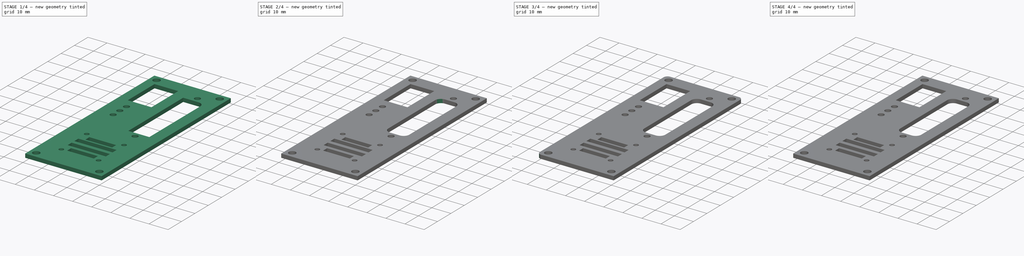
[diagram: build sequence overview — one tinted view per stage of 4, left to right]
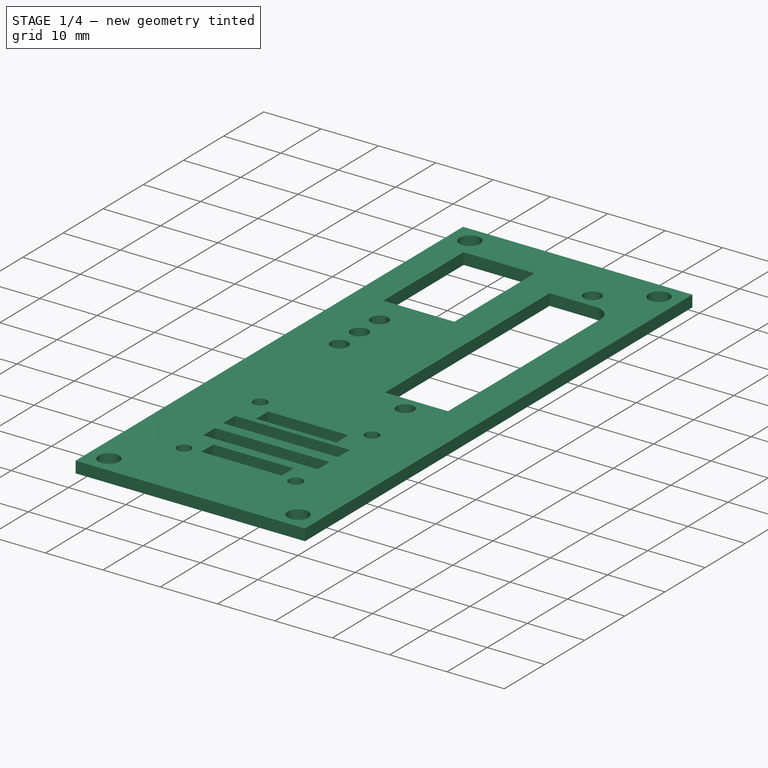
[diagram: stage 1 of 4 — iso view after this stage's code; geometry added in this stage tinted green]
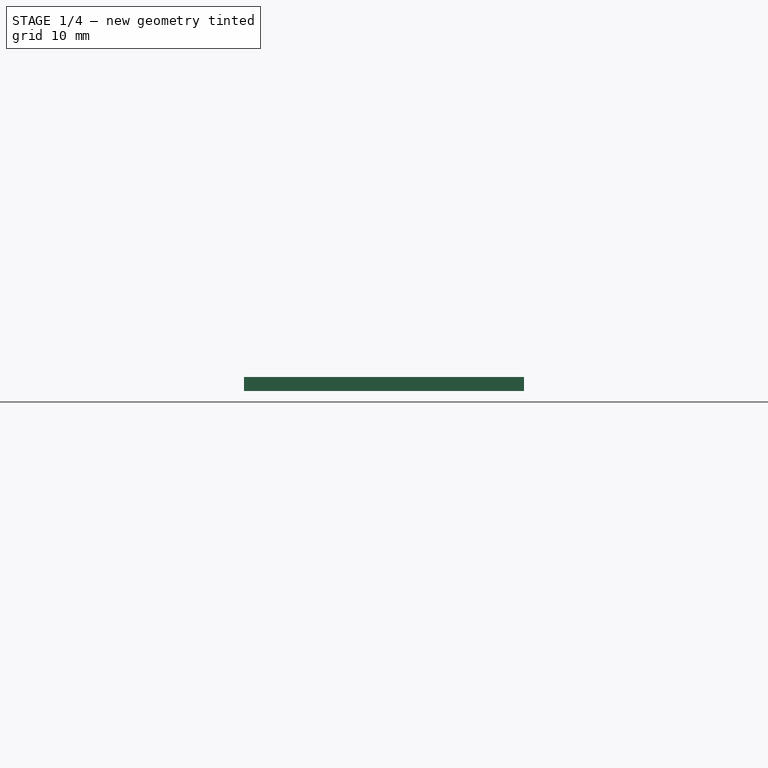
[diagram: stage 1 of 4 — front view after this stage's code; geometry added in this stage tinted green]
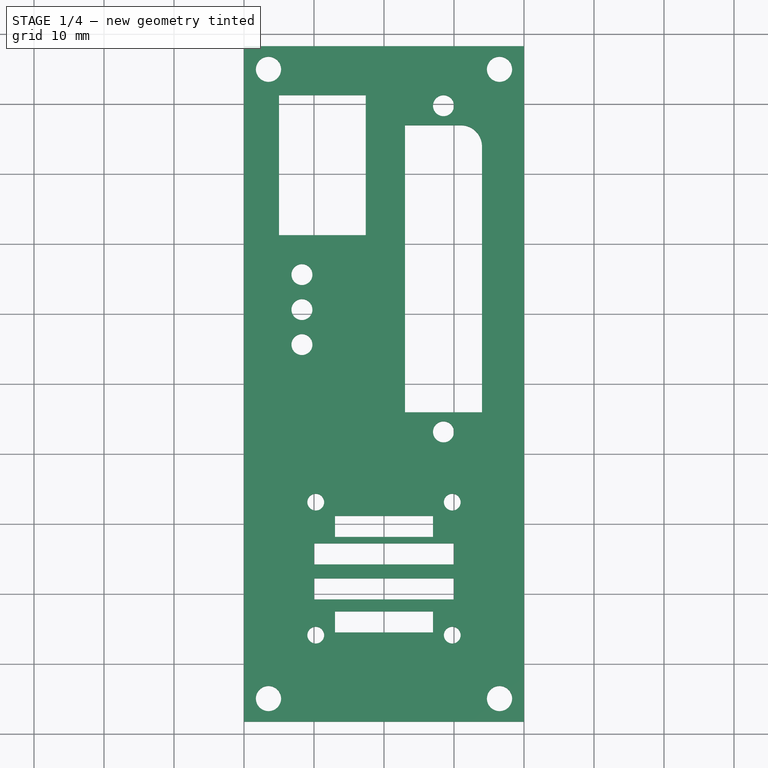
[diagram: stage 1 of 4 — top view after this stage's code; geometry added in this stage tinted green]
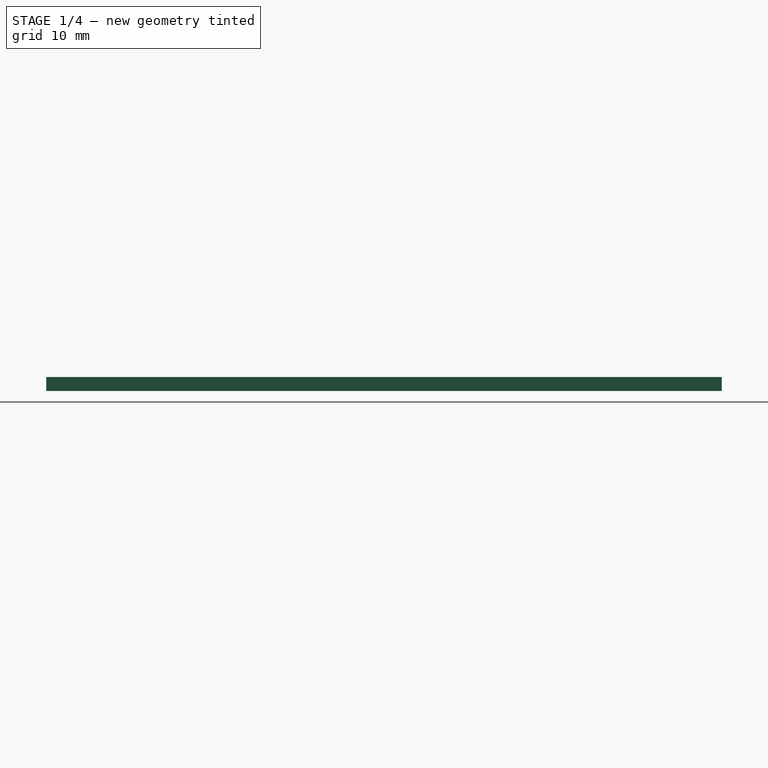
[diagram: stage 1 of 4 — right view after this stage's code; geometry added in this stage tinted green]
FCSTD DOCUMENT  (FreeCAD 0.18.4R)
Label: right_case
License: All rights reserved
LicenseURL: http://en.wikipedia.org/wiki/All_rights_reserved
objects: PartDesign::Fillet×9, Sketcher::SketchObject×3, PartDesign::Pad×1, PartDesign::Pocket×1, PartDesign::Hole×1, PartDesign::Body×1
note: 19 computed .brp shape members not serialized (recipe doc carries the construction recipe); baked Part::Feature solids carry a one-line shape summary decoded from their .brp

FEATURE [Sketcher::SketchObject] Sketch
  MapMode = 5
  Support = -> [XY_Plane]
  sketch-geometry (4):
    g0: LineSegment StartX=-20 StartY=48.25 StartZ=0 EndX=20 EndY=48.25 EndZ=0
    g1: LineSegment StartX=20 StartY=48.25 StartZ=0 EndX=20 EndY=-48.25 EndZ=0
    g2: LineSegment StartX=20 StartY=-48.25 StartZ=0 EndX=-20 EndY=-48.25 EndZ=0
    g3: LineSegment StartX=-20 StartY=-48.25 StartZ=0 EndX=-20 EndY=48.25 EndZ=0
  constraints (10):
    c: Coincident(g0,g1)
    c: Coincident(g1,g2)
    c: Coincident(g2,g3)
    c: Coincident(g3,g0)
    c: Horizontal(g2)
    c: Vertical(g1)
    c: DistanceX(g0,g0) = 40
    c: DistanceY(g3,g3) = 96.5
    c: Symmetric(g0,g0,g-2)
    c: Symmetric(g2,g0,g-1)
FEATURE [PartDesign::Pad] Pad
  Length = 2
  Length2 = 100
  Profile = -> Sketch
  Type = 0
FEATURE [Sketcher::SketchObject] Sketch001
  ExternalGeometry = -> [Pad]
  MapMode = 5
  Placement = pos=(0,0,2) rot=(0,0,1;0rad)
  Support = -> [Pad]
  sketch-geometry (37):
    g0: Circle CenterX=-16.5 CenterY=44.95 CenterZ=0 NormalX=0 NormalY=0 NormalZ=1 AngleXU=0 Radius=1.8
    g1: Circle CenterX=16.5 CenterY=44.95 CenterZ=0 NormalX=0 NormalY=0 NormalZ=1 AngleXU=0 Radius=1.8
    g2: Circle CenterX=-16.5 CenterY=-44.95 CenterZ=0 NormalX=0 NormalY=0 NormalZ=1 AngleXU=0 Radius=1.8
    g3: Circle CenterX=16.5 CenterY=-44.95 CenterZ=0 NormalX=0 NormalY=0 NormalZ=1 AngleXU=0 Radius=1.8
    g4: Circle CenterX=8.5 CenterY=39.75 CenterZ=0 NormalX=0 NormalY=0 NormalZ=1 AngleXU=0 Radius=1.5
    g5: Circle CenterX=8.5 CenterY=-6.85 CenterZ=0 NormalX=0 NormalY=0 NormalZ=1 AngleXU=0 Radius=1.5
    g6: LineSegment StartX=3 StartY=-4.05 StartZ=0 EndX=14 EndY=-4.05 EndZ=0
    g7: LineSegment StartX=14 StartY=-4.05 StartZ=0 EndX=14 EndY=36.95 EndZ=0
    g8: LineSegment StartX=14 StartY=36.95 StartZ=0 EndX=3 EndY=36.95 EndZ=0
    g9: LineSegment StartX=3 StartY=36.95 StartZ=0 EndX=3 EndY=-4.05 EndZ=0
    g10: Circle CenterX=-9.75 CenterY=-16.8871 CenterZ=0 NormalX=0 NormalY=0 NormalZ=1 AngleXU=0 Radius=1.2
    g11: Circle CenterX=9.75 CenterY=-16.8871 CenterZ=0 NormalX=0 NormalY=0 NormalZ=1 AngleXU=0 Radius=1.2
    g12: Circle CenterX=-9.75 CenterY=-35.8871 CenterZ=0 NormalX=0 NormalY=0 NormalZ=1 AngleXU=0 Radius=1.2
    g13: Circle CenterX=9.75 CenterY=-35.8871 CenterZ=0 NormalX=0 NormalY=0 NormalZ=1 AngleXU=0 Radius=1.2
    g14: LineSegment StartX=-7 StartY=-21.8539 StartZ=0 EndX=7 EndY=-21.8539 EndZ=0
    g15: LineSegment StartX=7 StartY=-21.8539 StartZ=0 EndX=7 EndY=-18.8539 EndZ=0
    g16: LineSegment StartX=7 StartY=-18.8539 StartZ=0 EndX=-7 EndY=-18.8539 EndZ=0
    g17: LineSegment StartX=-7 StartY=-18.8539 StartZ=0 EndX=-7 EndY=-21.8539 EndZ=0
    g18: LineSegment StartX=-10 StartY=-25.7938 StartZ=0 EndX=10 EndY=-25.7938 EndZ=0
    g19: LineSegment StartX=10 StartY=-25.7938 StartZ=0 EndX=10 EndY=-22.7938 EndZ=0
    g20: LineSegment StartX=10 StartY=-22.7938 StartZ=0 EndX=-10 EndY=-22.7938 EndZ=0
    g21: LineSegment StartX=-10 StartY=-22.7938 StartZ=0 EndX=-10 EndY=-25.7938 EndZ=0
    g22: LineSegment StartX=-10 StartY=-30.7938 StartZ=0 EndX=10 EndY=-30.7938 EndZ=0
    g23: LineSegment StartX=10 StartY=-30.7938 StartZ=0 EndX=10 EndY=-27.7938 EndZ=0
    g24: LineSegment StartX=10 StartY=-27.7938 StartZ=0 EndX=-10 EndY=-27.7938 EndZ=0
    g25: LineSegment StartX=-10 StartY=-27.7938 StartZ=0 EndX=-10 EndY=-30.7938 EndZ=0
    g26: LineSegment StartX=-7 StartY=-35.4996 StartZ=0 EndX=7 EndY=-35.4996 EndZ=0
    g27: LineSegment StartX=7 StartY=-35.4996 StartZ=0 EndX=7 EndY=-32.4996 EndZ=0
    g28: LineSegment StartX=7 StartY=-32.4996 StartZ=0 EndX=-7 EndY=-32.4996 EndZ=0
    g29: LineSegment StartX=-7 StartY=-32.4996 StartZ=0 EndX=-7 EndY=-35.4996 EndZ=0
    g30: LineSegment StartX=-15 StartY=41.25 StartZ=0 EndX=-2.6 EndY=41.25 EndZ=0
    g31: LineSegment StartX=-2.6 StartY=41.25 StartZ=0 EndX=-2.6 EndY=21.25 EndZ=0
    g32: LineSegment StartX=-2.6 StartY=21.25 StartZ=0 EndX=-15 EndY=21.25 EndZ=0
    g33: LineSegment StartX=-15 StartY=21.25 StartZ=0 EndX=-15 EndY=41.25 EndZ=0
    g34: Circle CenterX=-11.7221 CenterY=15.6235 CenterZ=0 NormalX=0 NormalY=0 NormalZ=1 AngleXU=0 Radius=1.5
    g35: Circle CenterX=-11.7221 CenterY=10.6235 CenterZ=0 NormalX=0 NormalY=0 NormalZ=1 AngleXU=0 Radius=1.5
    g36: Circle CenterX=-11.7221 CenterY=5.62347 CenterZ=0 NormalX=0 NormalY=0 NormalZ=1 AngleXU=0 Radius=1.5
  constraints (101):
    c: Distance(g0,g-3) = 3.3
    c: Distance(g0,g-4) = 3.5
    c: Radius(g0) = 1.8
    c: Radius(g1) = 1.8
    c: Radius(g3) = 1.8
    c: Radius(g2) = 1.8
    c: Distance(g2,g-4) = 3.5
    c: Distance(g2,g-6) = 3.3
    c: Distance(g3,g-5) = 3.5
    c: Distance(g3,g-6) = 3.3
    c: Distance(g1,g-5) = 3.5
    c: Distance(g-3) = 40
    c: Distance(g-3) = 40
    c: Distance(g1,g-3) = 3.3
    c: Radius(g4) = 1.5
    c: Radius(g5) = 1.5
    c: Coincident(g6,g7)
    c: Coincident(g7,g8)
    c: Coincident(g8,g9)
    c: Coincident(g9,g6)
    c: Horizontal(g6)
    c: Vertical(g7)
    c: DistanceY(g9,g9) = 41
    c: DistanceX(g8,g8) = 11
    c: Perpendicular(g9,g8)
    c: Distance(g4,g8) = 2.8
    c: Distance(g5,g6) = 2.8
    c: Distance(g4,g-5) = 11.5
    c: Distance(g5,g-5) = 11.5
    c: Distance(g7,g-5) = 6
    c: Distance(g4,g-3) = 8.5
    c: Radius(g10) = 1.2
    c: Radius(g11) = 1.2
    c: Radius(g12) = 1.2
    c: Radius(g13) = 1.2
    c: Vertical(g12,g10)
    c: Vertical(g13,g11)
    c: Distance(g10,g11) = 19.5
    c: Distance(g12,g10) = 19
    c: Distance(g13,g11) = 19
    c: Coincident(g14,g15)
    c: Coincident(g15,g16)
    c: Coincident(g16,g17)
    c: Coincident(g17,g14)
    c: Horizontal(g14)
    c: Vertical(g15)
    c: Vertical(g17)
    c: Coincident(g18,g19)
    c: Coincident(g19,g20)
    c: Coincident(g20,g21)
    c: Coincident(g21,g18)
    c: Horizontal(g18)
    c: Vertical(g19)
    c: Vertical(g21)
    c: Coincident(g22,g23)
    c: Coincident(g23,g24)
    c: Coincident(g24,g25)
    c: Coincident(g25,g22)
    c: Horizontal(g22)
    c: Vertical(g23)
    c: Vertical(g25)
    c: Coincident(g26,g27)
    c: Coincident(g27,g28)
    c: Coincident(g28,g29)
    c: Coincident(g29,g26)
    c: Horizontal(g26)
    c: Vertical(g27)
    c: Vertical(g29)
    c: DistanceY(g17,g17) = 3
    c: DistanceY(g21,g21) = 3
    c: DistanceY(g25,g25) = 3
    c: DistanceY(g29,g29) = 3
    c: DistanceX(g16,g16) = 14
    c: DistanceX(g20,g20) = 20
    c: DistanceX(g24,g24) = 20
    c: DistanceX(g26,g26) = 14
    c: Symmetric(g16,g15,g-2)
    c: Symmetric(g20,g19,g-2)
    c: Symmetric(g24,g23,g-2)
    c: Symmetric(g28,g27,g-2)
    c: Distance(g18,g24) = 2
    c: Symmetric(g10,g11,g-2)
    c: Coincident(g30,g31)
    c: Coincident(g31,g32)
    c: Coincident(g32,g33)
    c: Coincident(g33,g30)
    c: Horizontal(g30)
    c: Horizontal(g32)
    c: Vertical(g31)
    c: Vertical(g33)
    c: DistanceY(g33,g33) = 20
    c: DistanceX(g30,g30) = 12.4
    c: Distance(g30,g-3) = 7
    c: Distance(g32,g-4) = 5
    c: Vertical(g35,g34)
    c: Radius(g34) = 1.5
    c: Radius(g35) = 1.5
    c: Distance(g34,g35) = 5
    c: Vertical(g36,g35)
    c: Radius(g36) = 1.5
    c: Distance(g36,g35) = 5
FEATURE [PartDesign::Pocket] Pocket
  BaseFeature = -> Pad
  Length = 5
  Length2 = 100
  Profile = -> Sketch001
  Type = 0
FEATURE [PartDesign::Fillet] Fillet001
  Base = -> Pocket [Edge107]
  BaseFeature = -> Pocket
  Radius = 3
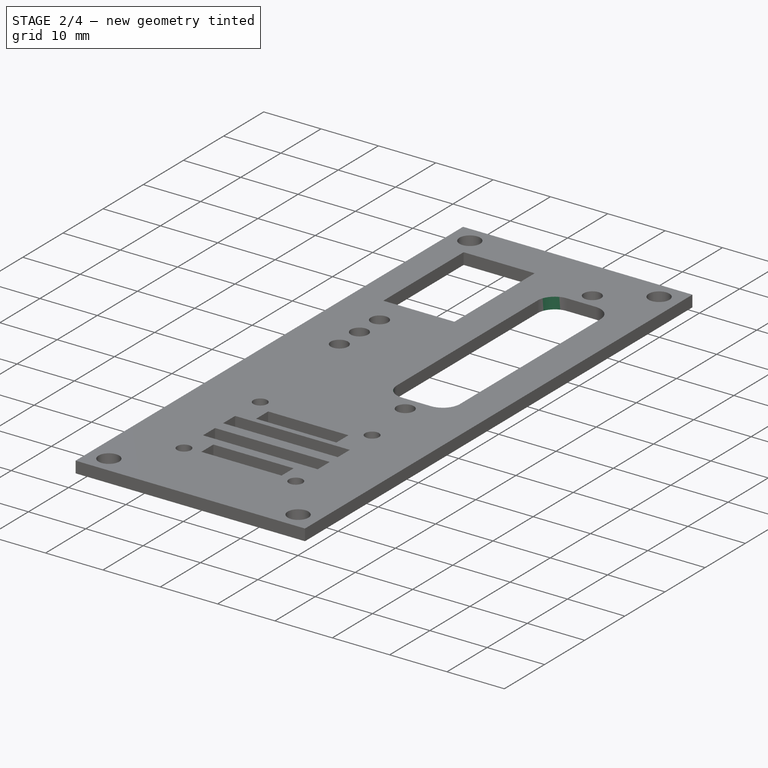
[diagram: stage 2 of 4 — iso view after this stage's code; geometry added in this stage tinted green]
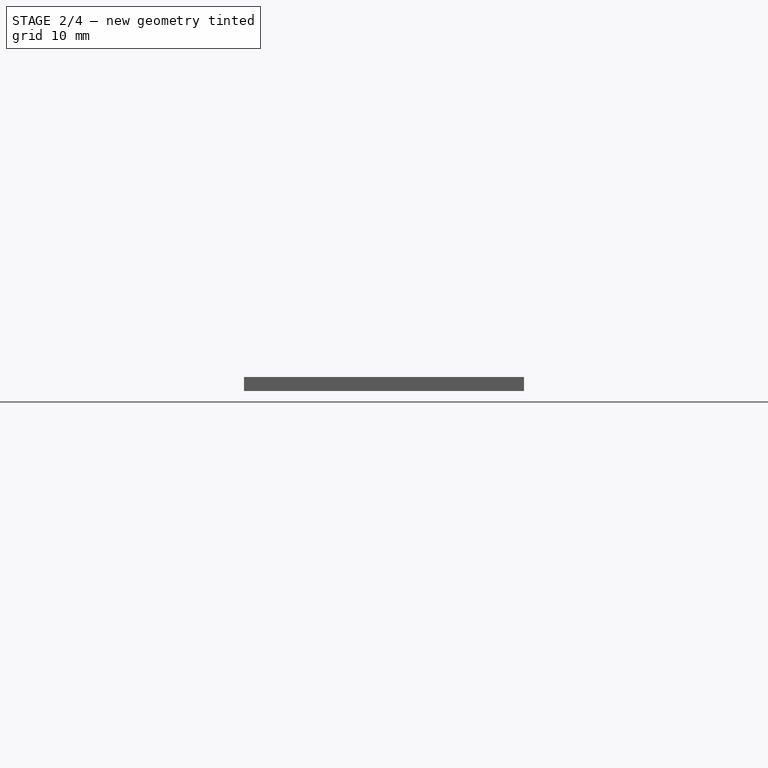
[diagram: stage 2 of 4 — front view after this stage's code; geometry added in this stage tinted green]
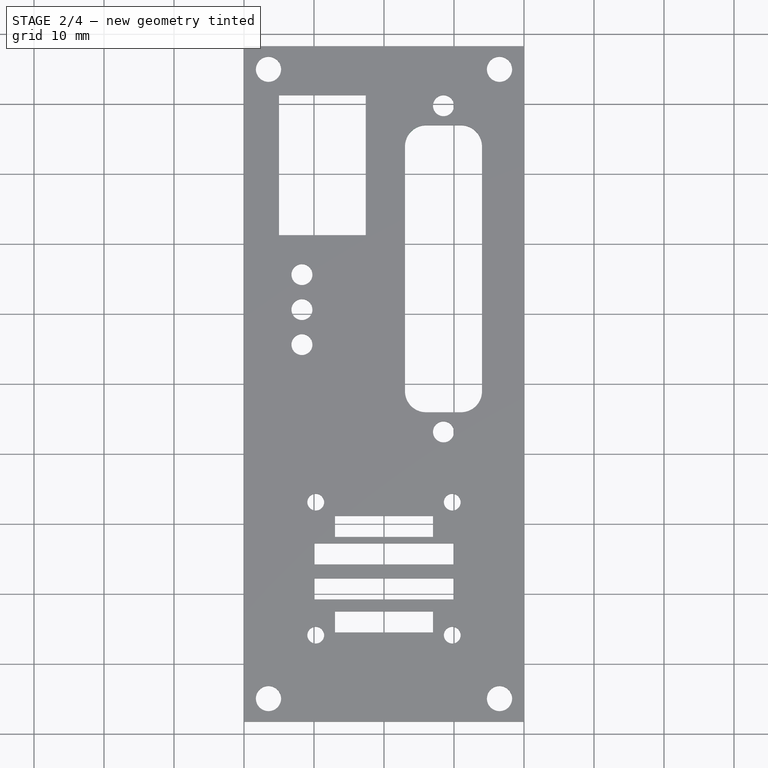
[diagram: stage 2 of 4 — top view after this stage's code; geometry added in this stage tinted green]
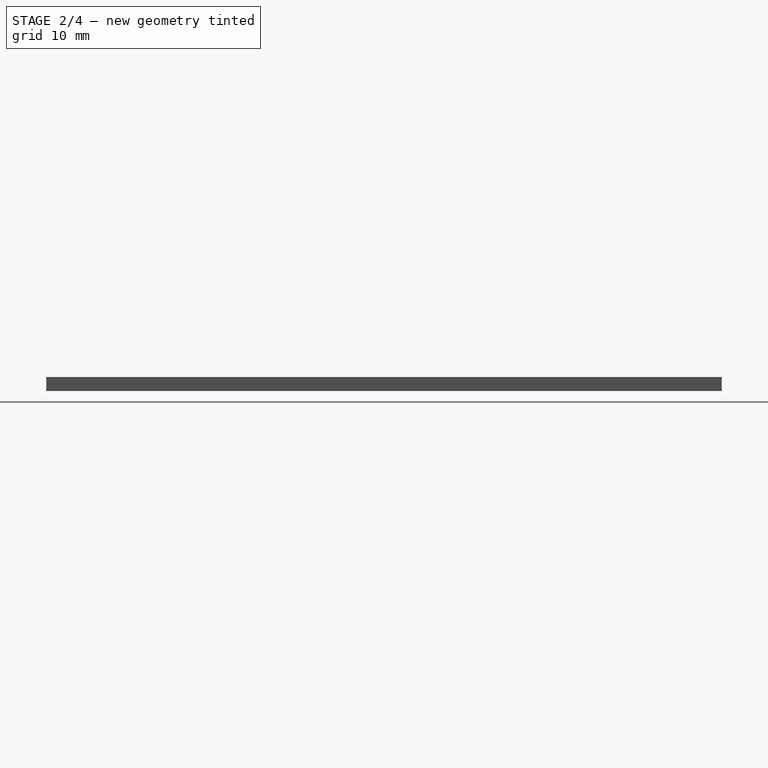
[diagram: stage 2 of 4 — right view after this stage's code; geometry added in this stage tinted green]
FEATURE [PartDesign::Fillet] Fillet002
  Base = -> Fillet001 [Edge51]
  BaseFeature = -> Fillet001
  Radius = 3
FEATURE [PartDesign::Fillet] Fillet003
  Base = -> Fillet002 [Edge52]
  BaseFeature = -> Fillet002
  Radius = 3
FEATURE [PartDesign::Fillet] Fillet004
  Base = -> Fillet003 [Edge53]
  BaseFeature = -> Fillet003
  Radius = 3
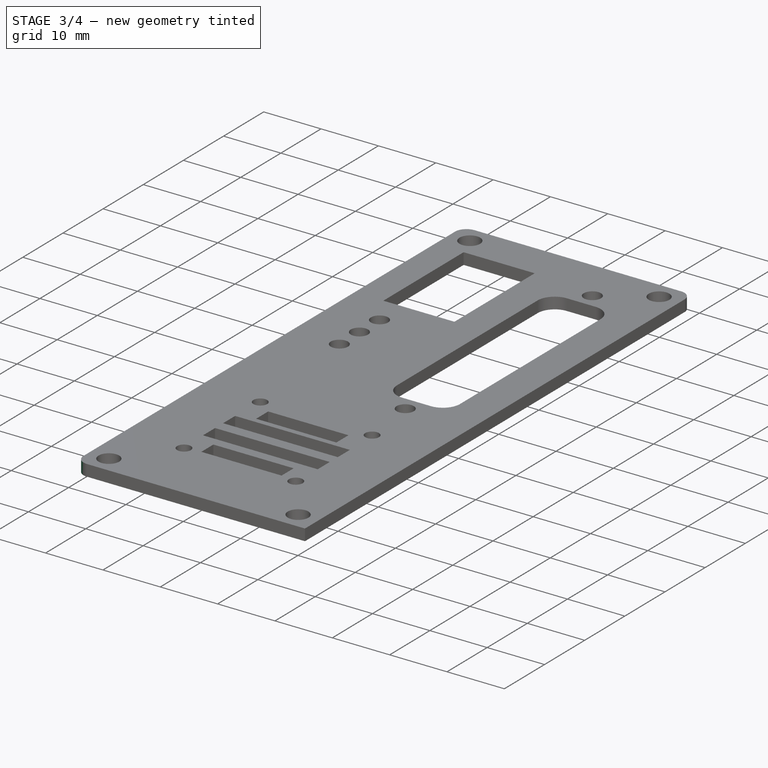
[diagram: stage 3 of 4 — iso view after this stage's code; geometry added in this stage tinted green]
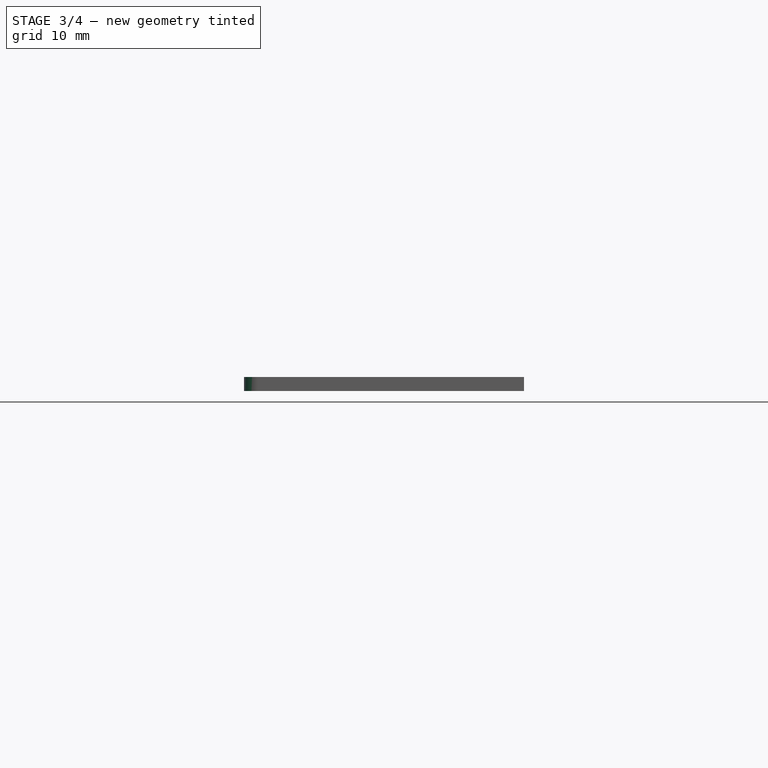
[diagram: stage 3 of 4 — front view after this stage's code; geometry added in this stage tinted green]
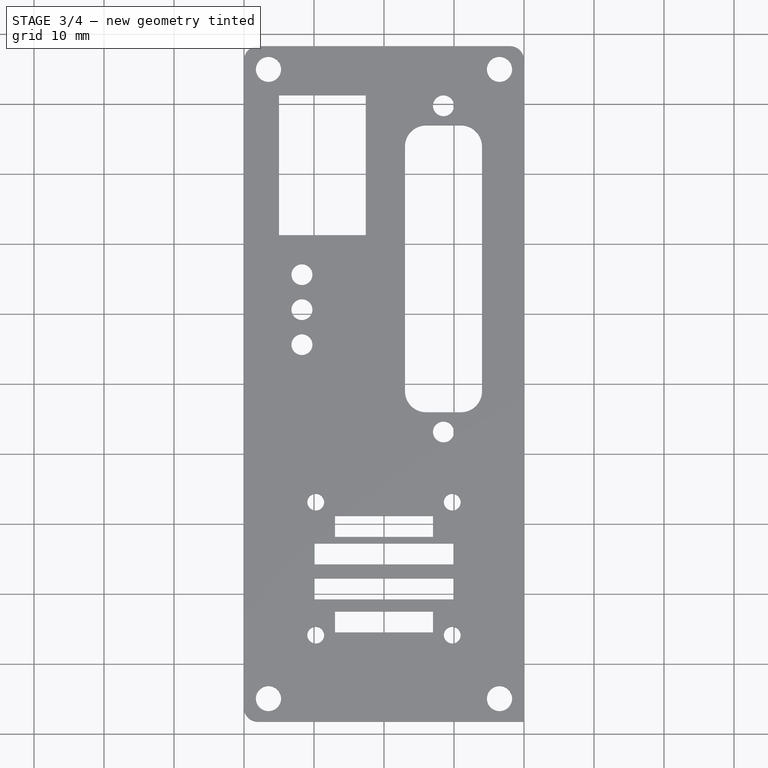
[diagram: stage 3 of 4 — top view after this stage's code; geometry added in this stage tinted green]
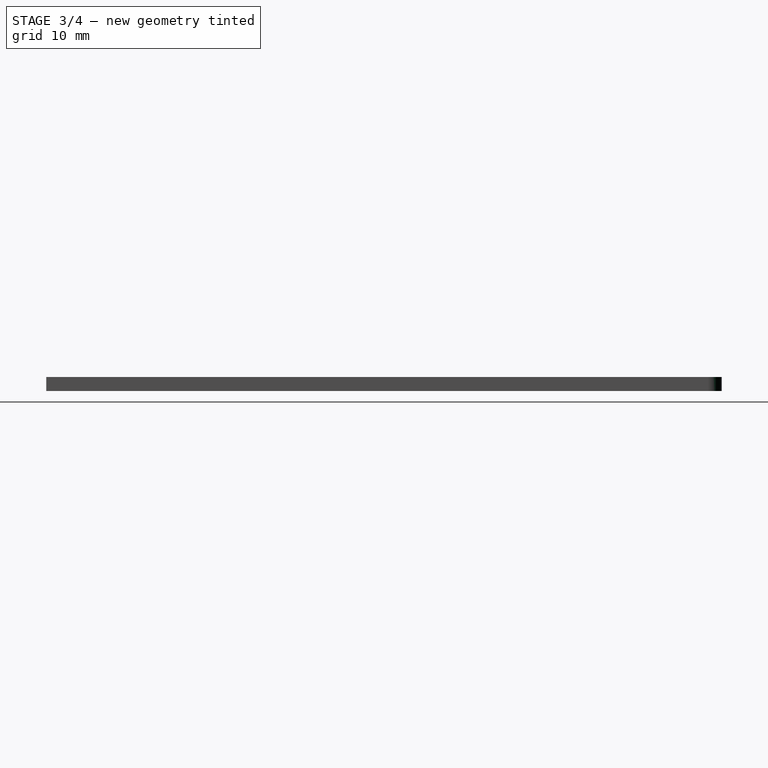
[diagram: stage 3 of 4 — right view after this stage's code; geometry added in this stage tinted green]
FEATURE [PartDesign::Fillet] Fillet005
  Base = -> Fillet004 [Edge63]
  BaseFeature = -> Fillet004
  Radius = 2
FEATURE [PartDesign::Fillet] Fillet006
  Base = -> Fillet005 [Edge48]
  BaseFeature = -> Fillet005
  Radius = 2
FEATURE [PartDesign::Fillet] Fillet007
  Base = -> Fillet006 [Edge55]
  BaseFeature = -> Fillet006
  Radius = 2
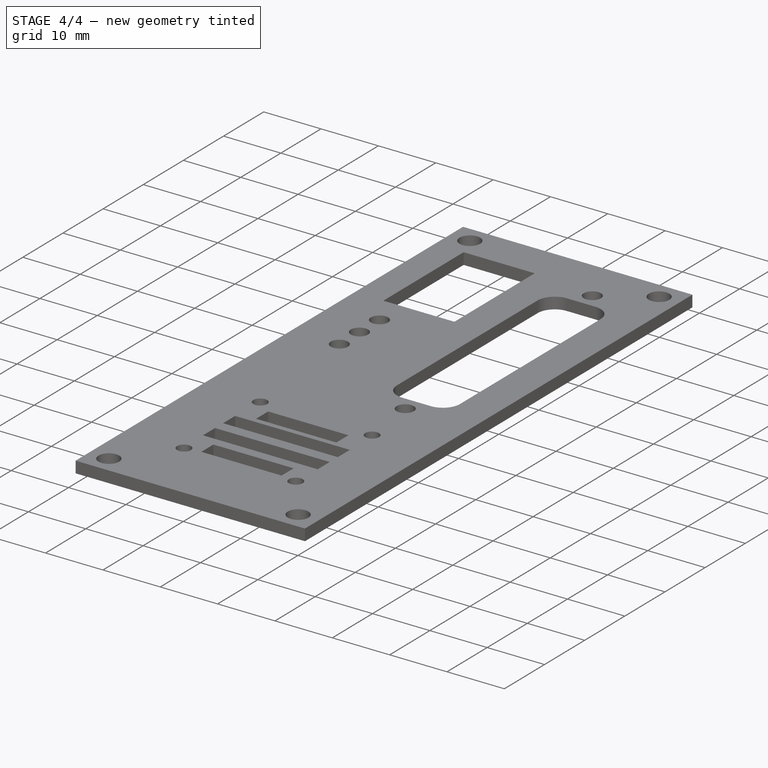
[diagram: stage 4 of 4 — iso view after this stage's code; geometry added in this stage tinted green]
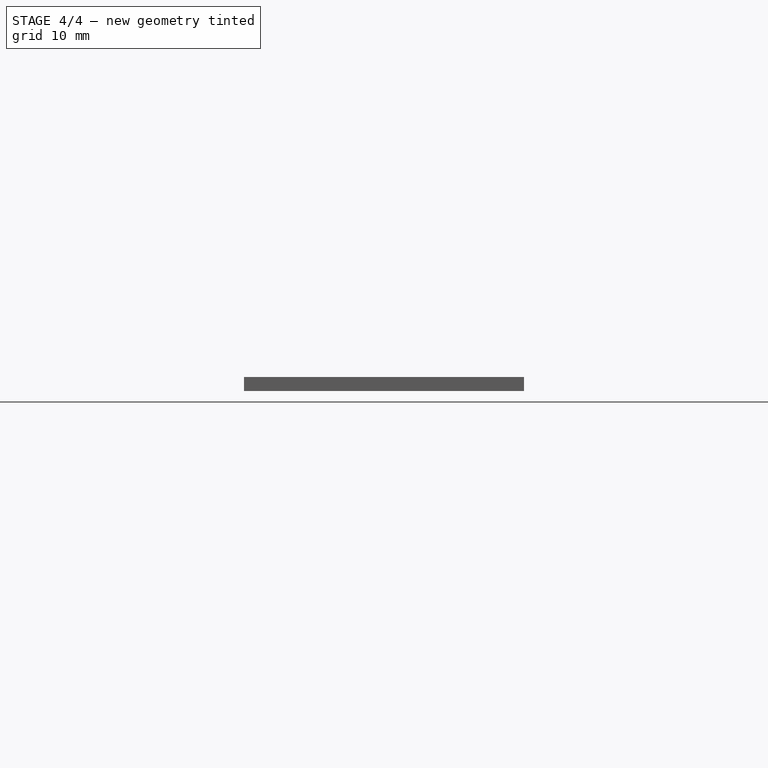
[diagram: stage 4 of 4 — front view after this stage's code; geometry added in this stage tinted green]
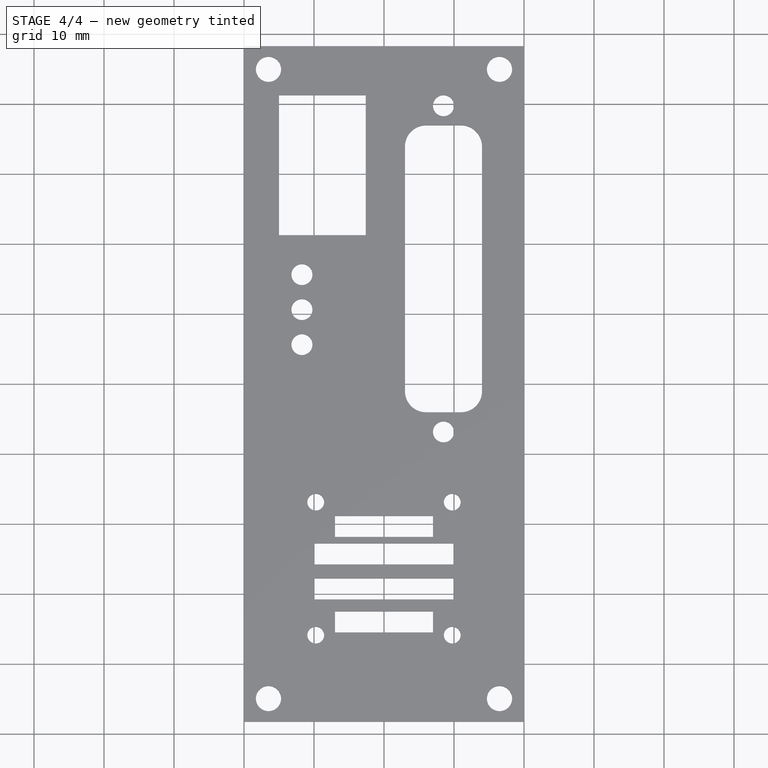
[diagram: stage 4 of 4 — top view after this stage's code; geometry added in this stage tinted green]
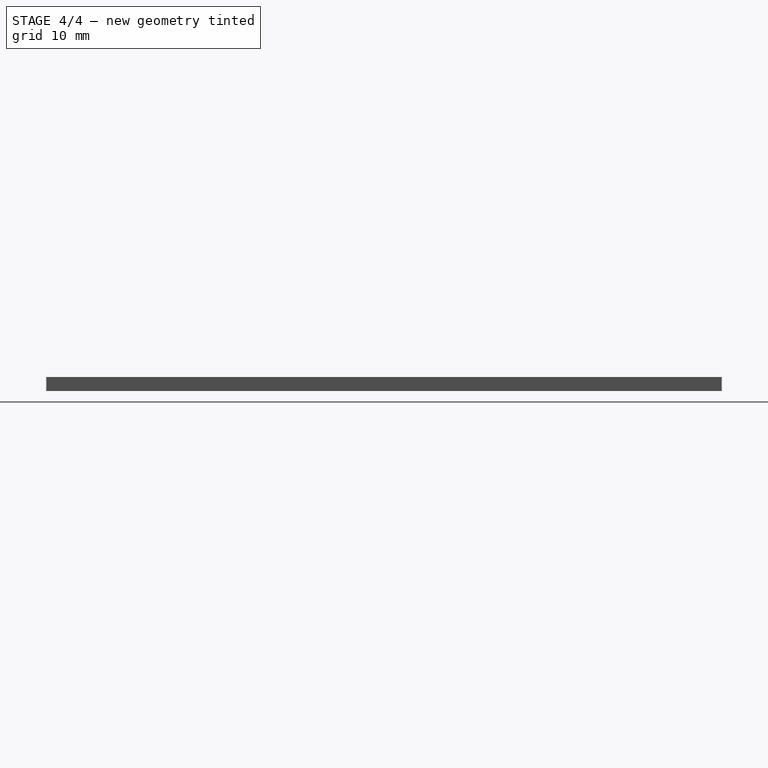
[diagram: stage 4 of 4 — right view after this stage's code; geometry added in this stage tinted green]
FEATURE [PartDesign::Fillet] Fillet
  Base = -> Pocket [Edge107]
  BaseFeature = -> Pocket
  Radius = 3
FEATURE [Sketcher::SketchObject] Sketch002
  MapMode = 5
  Placement = pos=(0,0,0) rot=(1,0,0;3.14159rad)
  sketch-geometry (4):
    g0: Circle CenterX=-9.5 CenterY=35.8871 CenterZ=0 NormalX=0 NormalY=0 NormalZ=1 AngleXU=0 Radius=1.6
    g1: Circle CenterX=9.75 CenterY=35.8871 CenterZ=0 NormalX=0 NormalY=0 NormalZ=1 AngleXU=0 Radius=1.6
    g2: Circle CenterX=-9.75 CenterY=35.8871 CenterZ=0 NormalX=0 NormalY=0 NormalZ=1 AngleXU=0 Radius=1.6
    g3: Circle CenterX=-9.5 CenterY=16.8871 CenterZ=0 NormalX=0 NormalY=0 NormalZ=1 AngleXU=0 Radius=1.6
  constraints (4):
    c: Radius(g0) = 1.6
    c: Radius(g1) = 1.6
    c: Radius(g2) = 1.6
    c: Radius(g3) = 1.6
FEATURE [PartDesign::Hole] Hole
  BaseFeature = -> Fillet
  Depth = 25
  DepthType = 0
  Diameter = 2
  DrillPoint = 1
  DrillPointAngle = 118
  HoleCutCountersinkAngle = 90
  HoleCutDepth = 0
  HoleCutDiameter = 4
  HoleCutType = 2
  ModelActualThread = false
  Profile = -> Sketch002
  Tapered = false
  TaperedAngle = 90
  ThreadAngle = 0
  ThreadClass = 0
  ThreadCutOffInner = 0
  ThreadCutOffOuter = 0
  ThreadDirection = 0
  ThreadFit = 0
  ThreadPitch = 0
  ThreadSize = 0
  ThreadType = 0
  Threaded = false
FEATURE [PartDesign::Fillet] Fillet008
  Base = -> Fillet007 [Edge56]
  BaseFeature = -> Fillet007
  Radius = 2
FEATURE [PartDesign::Body] Body
  Group = -> [Sketch,Pad,Sketch001,Pocket,Fillet,Sketch002,Hole,Fillet001,Fillet002,Fillet003,Fillet004,Fillet005,Fillet006,Fillet007,Fillet008]
  Origin = -> Origin
  Tip = -> Fillet008
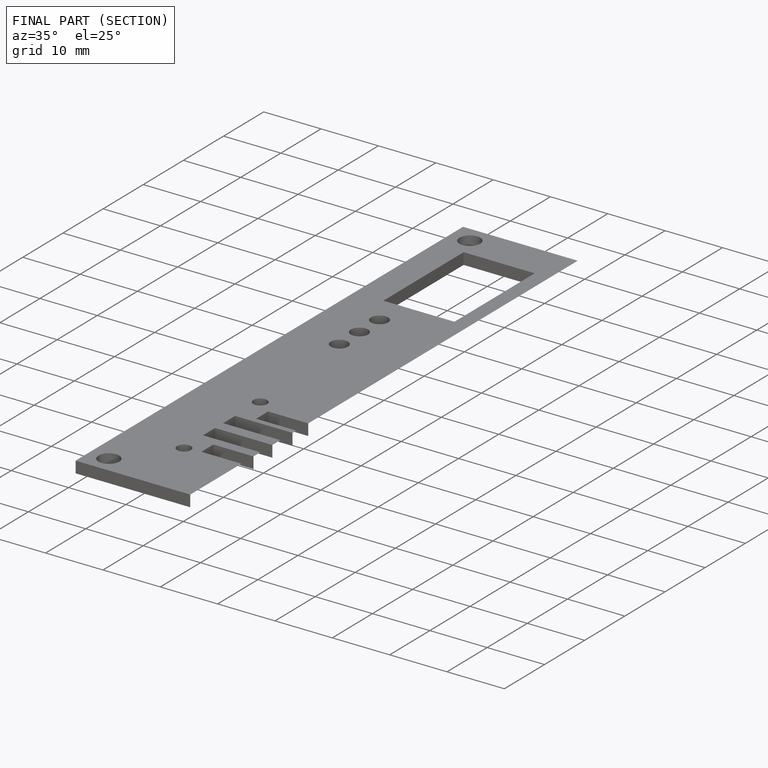
[diagram: finished part — half-section view (interior)]
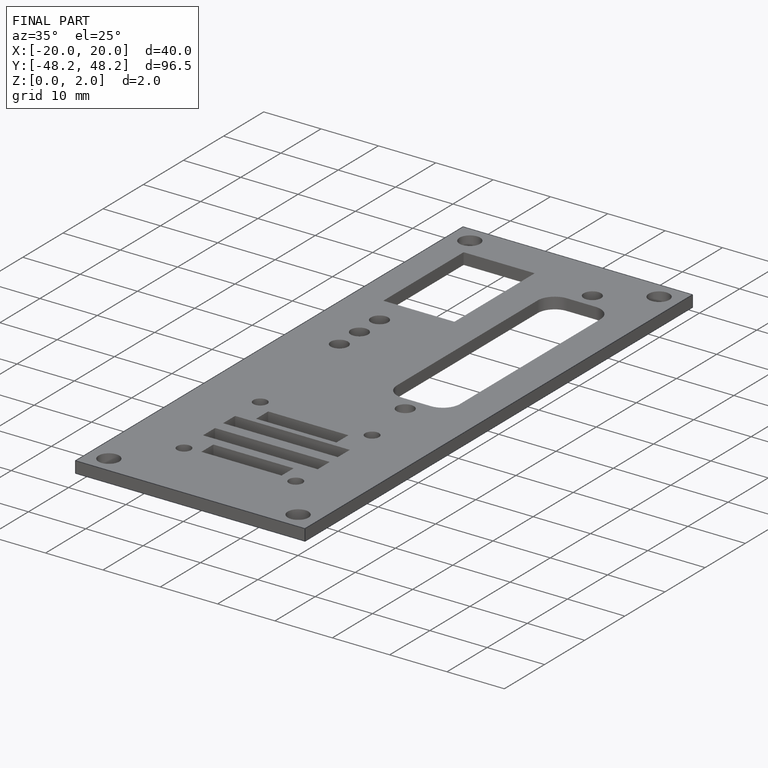
[diagram: finished part — iso view with bounding-box wireframe]
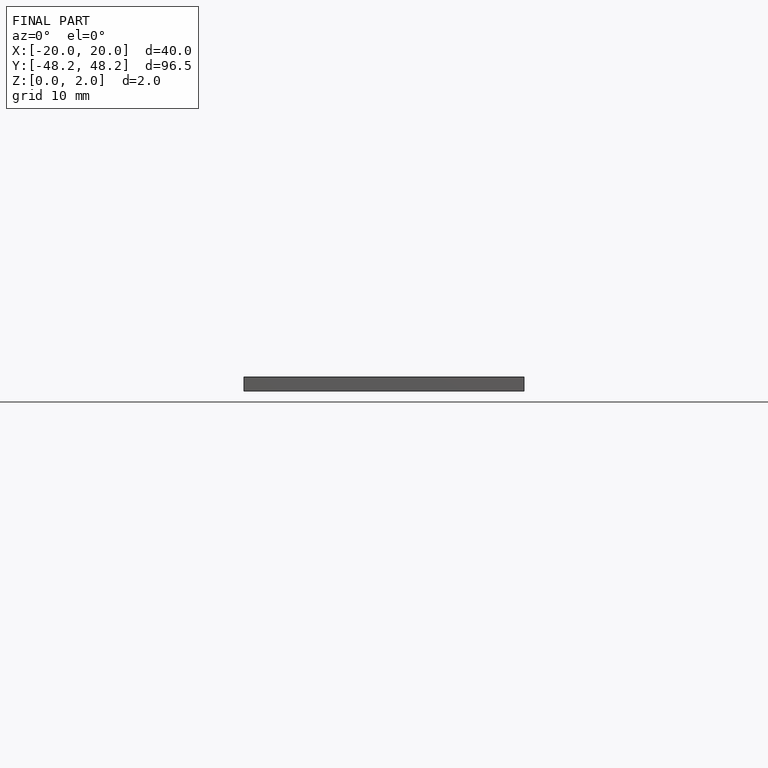
[diagram: finished part — front view with bounding-box wireframe]
